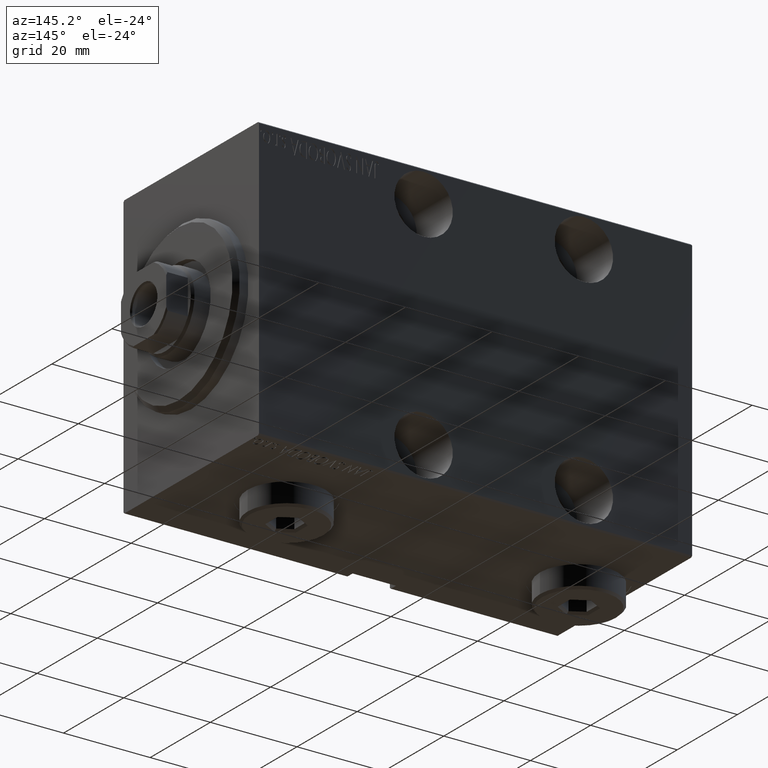
[diagram: clean part render]
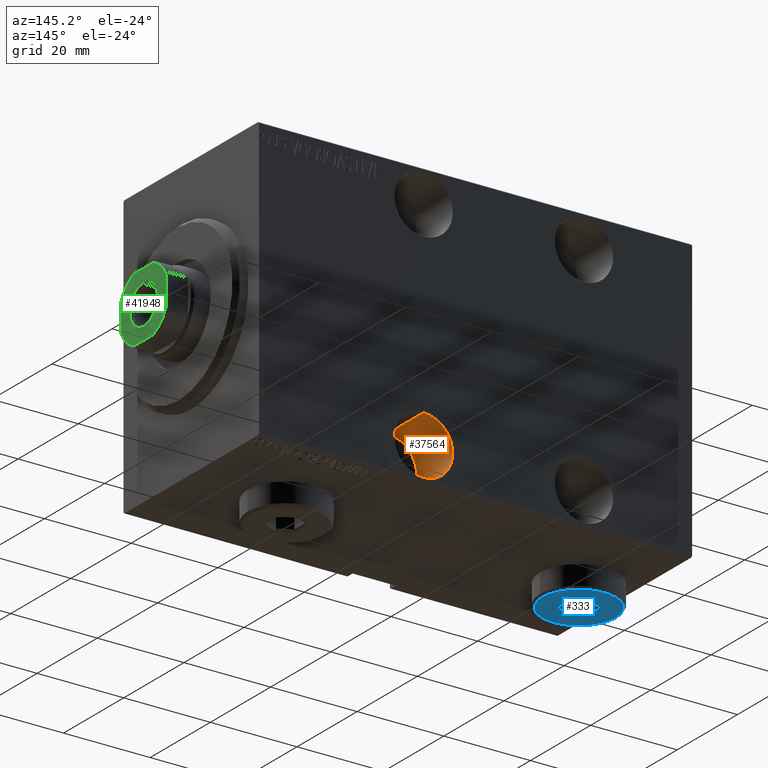
[diagram: same view with three faces highlighted in distinct colors, each labeled with its STEP entity id]
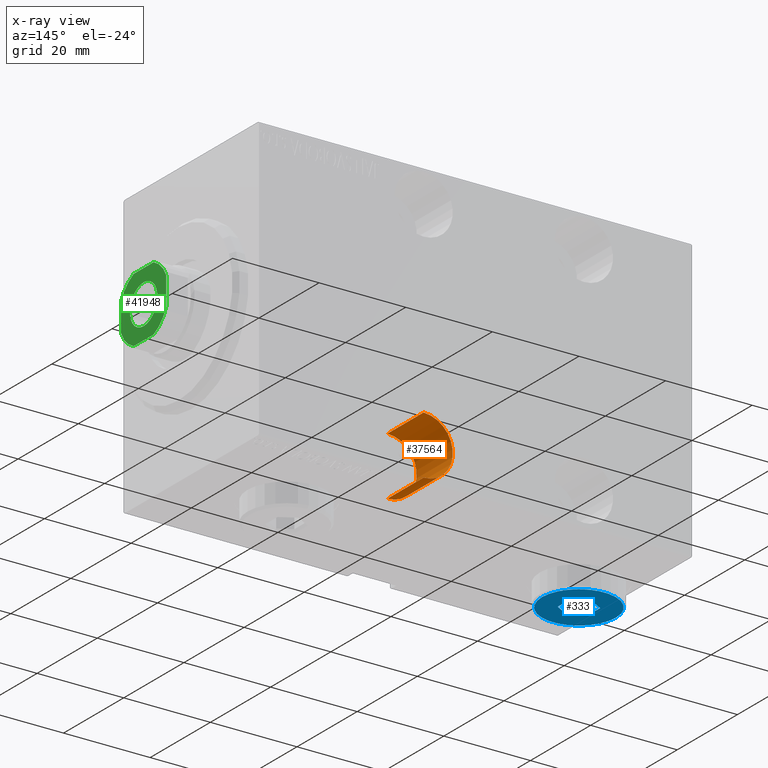
[diagram: x-ray of the same camera — body ghosted, the three highlighted faces saturated]
A machine part, auxiliary view with three faces highlighted in distinct colors.
The next image is the same camera in x-ray (body ghosted, the three faces saturated) — at least one of them is partly hidden behind the body in this view.
Their STEP definitions:

[orange] entity #37564 — the highlighted cylindrical surface (edge-blend (fillet) strip) has radius 6.75 mm, axis along (0, 1, -0).
#494 = ORIENTED_EDGE ( 'NONE', *, *, #17439, .T. ) ;
#1271 = EDGE_CURVE ( 'NONE', #2046, #23467, #23953, .T. ) ;
#1917 = CARTESIAN_POINT ( 'NONE',  ( 38.00000000000000711, -22.49999999999999645, -31.75000000000000000 ) ) ;
#2046 = VERTEX_POINT ( 'NONE', #1917 ) ;
#2572 = CARTESIAN_POINT ( 'NONE',  ( 38.00000000000000711, -10.49999999999999467, -18.25000000000000000 ) ) ;
#4057 = DIRECTION ( 'NONE',  ( -0.000000000000000000, -1.000000000000000000, -0.000000000000000000 ) ) ;
#4499 = CARTESIAN_POINT ( 'NONE',  ( 38.00000000000000711, -10.49999999999999467, -31.75000000000000000 ) ) ;
#7479 = AXIS2_PLACEMENT_3D ( 'NONE', #44005, #37258, #20615 ) ;
#8158 = FACE_OUTER_BOUND ( 'NONE', #32557, .T. ) ;
#8621 = EDGE_CURVE ( 'NONE', #25383, #23467, #26602, .T. ) ;
#10634 = CYLINDRICAL_SURFACE ( 'NONE', #33264, 6.750000000000002665 ) ;
#13976 = EDGE_CURVE ( 'NONE', #17099, #25383, #22192, .T. ) ;
#14667 = CARTESIAN_POINT ( 'NONE',  ( 38.00000000000000711, -10.49999999999999467, -24.99999999999999645 ) ) ;
#17096 = VECTOR ( 'NONE', #4057, 1000.000000000000000 ) ;
#17099 = VERTEX_POINT ( 'NONE', #30392 ) ;
#17439 = EDGE_CURVE ( 'NONE', #17099, #2046, #18409, .T. ) ;
#18409 = LINE ( 'NONE', #4499, #17096 ) ;
#20615 = DIRECTION ( 'NONE',  ( 0.000000000000000000, 0.000000000000000000, -1.000000000000000000 ) ) ;
#22037 = VECTOR ( 'NONE', #25730, 1000.000000000000000 ) ;
#22192 = CIRCLE ( 'NONE', #31504, 6.750000000000002665 ) ;
#23467 = VERTEX_POINT ( 'NONE', #37463 ) ;
#23953 = CIRCLE ( 'NONE', #7479, 6.750000000000002665 ) ;
#24339 = DIRECTION ( 'NONE',  ( 0.000000000000000000, 0.000000000000000000, -1.000000000000000000 ) ) ;
#25383 = VERTEX_POINT ( 'NONE', #38865 ) ;
#25515 = DIRECTION ( 'NONE',  ( 0.000000000000000000, -1.000000000000000000, 0.000000000000000000 ) ) ;
#25730 = DIRECTION ( 'NONE',  ( -0.000000000000000000, -1.000000000000000000, -0.000000000000000000 ) ) ;
#26361 = ORIENTED_EDGE ( 'NONE', *, *, #8621, .F. ) ;
#26602 = LINE ( 'NONE', #2572, #22037 ) ;
#29993 = ORIENTED_EDGE ( 'NONE', *, *, #1271, .T. ) ;
#30392 = CARTESIAN_POINT ( 'NONE',  ( 38.00000000000000711, -10.49999999999999467, -31.75000000000000000 ) ) ;
#31504 = AXIS2_PLACEMENT_3D ( 'NONE', #32262, #25515, #39222 ) ;
#32262 = CARTESIAN_POINT ( 'NONE',  ( 38.00000000000000711, -10.49999999999999467, -24.99999999999999645 ) ) ;
#32557 = EDGE_LOOP ( 'NONE', ( #26361, #37799, #494, #29993 ) ) ;
#33264 = AXIS2_PLACEMENT_3D ( 'NONE', #14667, #34907, #24339 ) ;
#34907 = DIRECTION ( 'NONE',  ( -0.000000000000000000, -1.000000000000000000, -0.000000000000000000 ) ) ;
#37258 = DIRECTION ( 'NONE',  ( 0.000000000000000000, -1.000000000000000000, 0.000000000000000000 ) ) ;
#37463 = CARTESIAN_POINT ( 'NONE',  ( 38.00000000000000711, -22.49999999999999645, -18.24999999999999645 ) ) ;
#37564 = ADVANCED_FACE ( 'NONE', ( #8158 ), #10634, .F. ) ;
#37799 = ORIENTED_EDGE ( 'NONE', *, *, #13976, .F. ) ;
#38865 = CARTESIAN_POINT ( 'NONE',  ( 38.00000000000000711, -10.49999999999999467, -18.24999999999999645 ) ) ;
#39222 = DIRECTION ( 'NONE',  ( 0.000000000000000000, 0.000000000000000000, -1.000000000000000000 ) ) ;
#44005 = CARTESIAN_POINT ( 'NONE',  ( 38.00000000000000711, -22.49999999999999645, -24.99999999999999645 ) ) ;

[blue] entity #333 — the highlighted planar face has unit normal (-0, 0, -1).
#320 = ORIENTED_EDGE ( 'NONE', *, *, #13819, .T. ) ;
#333 = ADVANCED_FACE ( 'NONE', ( #40903, #30783 ), #41125, .T. ) ;
#900 = DIRECTION ( 'NONE',  ( -0.8660254037844387076, -0.4999999999999998890, 0.000000000000000000 ) ) ;
#1118 = CIRCLE ( 'NONE', #26233, 8.500000000000010658 ) ;
#1125 = AXIS2_PLACEMENT_3D ( 'NONE', #38830, #21753, #1311 ) ;
#1311 = DIRECTION ( 'NONE',  ( 1.000000000000000000, 0.000000000000000000, 0.000000000000000000 ) ) ;
#1593 = DIRECTION ( 'NONE',  ( 0.000000000000000000, 1.000000000000000000, 0.000000000000000000 ) ) ;
#3164 = DIRECTION ( 'NONE',  ( 0.000000000000000000, 0.000000000000000000, 1.000000000000000000 ) ) ;
#3533 = CARTESIAN_POINT ( 'NONE',  ( -1.006139216460143630E-15, -4.041451884327387667, 5.000000000000000000 ) ) ;
#3609 = DIRECTION ( 'NONE',  ( 1.000000000000000000, 0.000000000000000000, -0.000000000000000000 ) ) ;
#4963 = CARTESIAN_POINT ( 'NONE',  ( 0.000000000000000000, 0.000000000000000000, 5.000000000000000000 ) ) ;
#5098 = EDGE_CURVE ( 'NONE', #9461, #44187, #15466, .T. ) ;
#5415 = LINE ( 'NONE', #11691, #32445 ) ;
#6675 = VERTEX_POINT ( 'NONE', #25705 ) ;
#7080 = EDGE_CURVE ( 'NONE', #31456, #27929, #17982, .T. ) ;
#7638 = ORIENTED_EDGE ( 'NONE', *, *, #41480, .T. ) ;
#7868 = CARTESIAN_POINT ( 'NONE',  ( -3.500000000000006661, 2.020725942163692945, 5.000000000000000000 ) ) ;
#7884 = DIRECTION ( 'NONE',  ( 1.000000000000000000, 0.000000000000000000, 0.000000000000000000 ) ) ;
#9461 = VERTEX_POINT ( 'NONE', #13449 ) ;
#10822 = ORIENTED_EDGE ( 'NONE', *, *, #42860, .T. ) ;
#11451 = VECTOR ( 'NONE', #26035, 1000.000000000000000 ) ;
#11691 = CARTESIAN_POINT ( 'NONE',  ( -3.500000000000006661, 1.732050807568878081, 5.000000000000000000 ) ) ;
#12623 = VERTEX_POINT ( 'NONE', #34643 ) ;
#13449 = CARTESIAN_POINT ( 'NONE',  ( -8.500000000000010658, 0.000000000000000000, 5.000000000000000000 ) ) ;
#13819 = EDGE_CURVE ( 'NONE', #20999, #6675, #14058, .T. ) ;
#14058 = LINE ( 'NONE', #31143, #37237 ) ;
#14728 = DIRECTION ( 'NONE',  ( 0.8660254037844387076, 0.4999999999999998335, 0.000000000000000000 ) ) ;
#14815 = CARTESIAN_POINT ( 'NONE',  ( 0.2500000000000027756, -3.897114317029979347, 5.000000000000000000 ) ) ;
#15466 = CIRCLE ( 'NONE', #1125, 8.500000000000010658 ) ;
#16228 = VECTOR ( 'NONE', #900, 1000.000000000000000 ) ;
#16849 = LINE ( 'NONE', #20001, #20513 ) ;
#17208 = ORIENTED_EDGE ( 'NONE', *, *, #7080, .T. ) ;
#17982 = LINE ( 'NONE', #14815, #16228 ) ;
#18051 = DIRECTION ( 'NONE',  ( 0.000000000000000000, -1.000000000000000000, 0.000000000000000000 ) ) ;
#18224 = AXIS2_PLACEMENT_3D ( 'NONE', #37308, #3164, #3609 ) ;
#20001 = CARTESIAN_POINT ( 'NONE',  ( -3.250000000000003109, -2.165063509461102598, 5.000000000000000000 ) ) ;
#20040 = EDGE_LOOP ( 'NONE', ( #26907, #7638 ) ) ;
#20513 = VECTOR ( 'NONE', #23373, 1000.000000000000114 ) ;
#20999 = VERTEX_POINT ( 'NONE', #7868 ) ;
#21190 = EDGE_CURVE ( 'NONE', #6675, #24073, #39531, .T. ) ;
#21195 = LINE ( 'NONE', #28166, #25219 ) ;
#21753 = DIRECTION ( 'NONE',  ( 0.000000000000000000, 0.000000000000000000, 1.000000000000000000 ) ) ;
#22441 = CARTESIAN_POINT ( 'NONE',  ( 3.250000000000003109, 2.165063509461103042, 5.000000000000000000 ) ) ;
#23373 = DIRECTION ( 'NONE',  ( -0.8660254037844385966, 0.4999999999999999445, 0.000000000000000000 ) ) ;
#24073 = VERTEX_POINT ( 'NONE', #35107 ) ;
#25219 = VECTOR ( 'NONE', #18051, 1000.000000000000000 ) ;
#25705 = CARTESIAN_POINT ( 'NONE',  ( 1.590596867181068292E-15, 4.041451884327386779, 5.000000000000000000 ) ) ;
#26035 = DIRECTION ( 'NONE',  ( 0.8660254037844387076, -0.4999999999999998890, 0.000000000000000000 ) ) ;
#26233 = AXIS2_PLACEMENT_3D ( 'NONE', #4963, #38880, #7884 ) ;
#26414 = EDGE_CURVE ( 'NONE', #24073, #31456, #21195, .T. ) ;
#26583 = ORIENTED_EDGE ( 'NONE', *, *, #21190, .T. ) ;
#26907 = ORIENTED_EDGE ( 'NONE', *, *, #5098, .T. ) ;
#27423 = EDGE_CURVE ( 'NONE', #12623, #20999, #5415, .T. ) ;
#27929 = VERTEX_POINT ( 'NONE', #3533 ) ;
#28166 = CARTESIAN_POINT ( 'NONE',  ( 3.500000000000006661, -1.732050807568878303, 5.000000000000000000 ) ) ;
#30783 = FACE_OUTER_BOUND ( 'NONE', #20040, .T. ) ;
#31143 = CARTESIAN_POINT ( 'NONE',  ( -0.2500000000000027756, 3.897114317029978459, 5.000000000000000000 ) ) ;
#31456 = VERTEX_POINT ( 'NONE', #41913 ) ;
#31891 = EDGE_LOOP ( 'NONE', ( #36763, #320, #26583, #31925, #17208, #10822 ) ) ;
#31925 = ORIENTED_EDGE ( 'NONE', *, *, #26414, .T. ) ;
#32445 = VECTOR ( 'NONE', #1593, 1000.000000000000000 ) ;
#34643 = CARTESIAN_POINT ( 'NONE',  ( -3.500000000000006661, -2.020725942163694278, 5.000000000000000000 ) ) ;
#35107 = CARTESIAN_POINT ( 'NONE',  ( 3.500000000000006661, 2.020725942163694722, 5.000000000000000000 ) ) ;
#36092 = CARTESIAN_POINT ( 'NONE',  ( 8.500000000000010658, 1.071565949253934716E-15, 5.000000000000000000 ) ) ;
#36763 = ORIENTED_EDGE ( 'NONE', *, *, #27423, .T. ) ;
#37237 = VECTOR ( 'NONE', #14728, 1000.000000000000000 ) ;
#37308 = CARTESIAN_POINT ( 'NONE',  ( 0.000000000000000000, 0.000000000000000000, 5.000000000000000000 ) ) ;
#38830 = CARTESIAN_POINT ( 'NONE',  ( 0.000000000000000000, 0.000000000000000000, 5.000000000000000000 ) ) ;
#38880 = DIRECTION ( 'NONE',  ( 0.000000000000000000, 0.000000000000000000, 1.000000000000000000 ) ) ;
#39531 = LINE ( 'NONE', #22441, #11451 ) ;
#40903 = FACE_BOUND ( 'NONE', #31891, .T. ) ;
#41125 = PLANE ( 'NONE',  #18224 ) ;
#41480 = EDGE_CURVE ( 'NONE', #44187, #9461, #1118, .T. ) ;
#41913 = CARTESIAN_POINT ( 'NONE',  ( 3.500000000000006661, -2.020725942163693833, 5.000000000000000000 ) ) ;
#42860 = EDGE_CURVE ( 'NONE', #27929, #12623, #16849, .T. ) ;
#44187 = VERTEX_POINT ( 'NONE', #36092 ) ;

[green] entity #41948 — the highlighted planar face has unit normal (1, 0, -0).
#587 = AXIS2_PLACEMENT_3D ( 'NONE', #9229, #39356, #8573 ) ;
#1431 = ORIENTED_EDGE ( 'NONE', *, *, #37709, .T. ) ;
#1462 = CARTESIAN_POINT ( 'NONE',  ( 0.000000000000000000, 0.000000000000000000, 105.0000000000000142 ) ) ;
#1770 = VERTEX_POINT ( 'NONE', #17546 ) ;
#2092 = ORIENTED_EDGE ( 'NONE', *, *, #42158, .T. ) ;
#2322 = CARTESIAN_POINT ( 'NONE',  ( 0.000000000000000000, 0.000000000000000000, 105.0000000000000142 ) ) ;
#2662 = ORIENTED_EDGE ( 'NONE', *, *, #17494, .T. ) ;
#2860 = FACE_BOUND ( 'NONE', #32064, .T. ) ;
#3290 = EDGE_CURVE ( 'NONE', #29257, #38885, #15425, .T. ) ;
#3716 = CARTESIAN_POINT ( 'NONE',  ( -7.499999999999999112, -3.315116890850218212, 105.0000000000000142 ) ) ;
#4136 = CARTESIAN_POINT ( 'NONE',  ( 3.315116890850199116, 7.500000000000000888, 105.0000000000000142 ) ) ;
#4891 = CIRCLE ( 'NONE', #6294, 4.549999999999984723 ) ;
#5518 = DIRECTION ( 'NONE',  ( 1.000000000000000000, 0.000000000000000000, 0.000000000000000000 ) ) ;
#5534 = AXIS2_PLACEMENT_3D ( 'NONE', #1462, #21912, #11133 ) ;
#6294 = AXIS2_PLACEMENT_3D ( 'NONE', #39334, #28777, #42491 ) ;
#8369 = EDGE_CURVE ( 'NONE', #14981, #42926, #41411, .T. ) ;
#8573 = DIRECTION ( 'NONE',  ( 1.000000000000000000, 0.000000000000000000, 0.000000000000000000 ) ) ;
#8623 = DIRECTION ( 'NONE',  ( -0.000000000000000000, 0.000000000000000000, 1.000000000000000000 ) ) ;
#9229 = CARTESIAN_POINT ( 'NONE',  ( 0.000000000000000000, 0.000000000000000000, 105.0000000000000142 ) ) ;
#10250 = CARTESIAN_POINT ( 'NONE',  ( 0.000000000000000000, 0.000000000000000000, 105.0000000000000142 ) ) ;
#10615 = AXIS2_PLACEMENT_3D ( 'NONE', #2322, #8623, #22100 ) ;
#10657 = ORIENTED_EDGE ( 'NONE', *, *, #3290, .T. ) ;
#11044 = DIRECTION ( 'NONE',  ( 0.000000000000000000, -0.000000000000000000, -1.000000000000000000 ) ) ;
#11085 = EDGE_CURVE ( 'NONE', #38885, #29257, #4891, .T. ) ;
#11133 = DIRECTION ( 'NONE',  ( 1.000000000000000000, 0.000000000000000000, 0.000000000000000000 ) ) ;
#11529 = CARTESIAN_POINT ( 'NONE',  ( -3.315116890850142717, 7.500000000000000888, 105.0000000000000142 ) ) ;
#12138 = CIRCLE ( 'NONE', #10615, 8.200000000000024158 ) ;
#13478 = LINE ( 'NONE', #19339, #18702 ) ;
#14288 = DIRECTION ( 'NONE',  ( 1.000000000000000000, 0.000000000000000000, 0.000000000000000000 ) ) ;
#14590 = DIRECTION ( 'NONE',  ( -1.000000000000000000, 5.782411586589357392E-17, -0.000000000000000000 ) ) ;
#14981 = VERTEX_POINT ( 'NONE', #11529 ) ;
#15425 = CIRCLE ( 'NONE', #16138, 4.549999999999984723 ) ;
#15658 = CIRCLE ( 'NONE', #587, 8.200000000000017053 ) ;
#16088 = EDGE_CURVE ( 'NONE', #43084, #1770, #12138, .T. ) ;
#16138 = AXIS2_PLACEMENT_3D ( 'NONE', #34868, #11044, #24976 ) ;
#16681 = VERTEX_POINT ( 'NONE', #30004 ) ;
#17180 = ORIENTED_EDGE ( 'NONE', *, *, #18647, .T. ) ;
#17279 = EDGE_CURVE ( 'NONE', #16681, #35865, #15658, .T. ) ;
#17494 = EDGE_CURVE ( 'NONE', #35803, #14981, #24262, .T. ) ;
#17546 = CARTESIAN_POINT ( 'NONE',  ( -3.315116890850222653, -7.499999999999998224, 105.0000000000000142 ) ) ;
#18647 = EDGE_CURVE ( 'NONE', #35865, #36926, #24679, .T. ) ;
#18702 = VECTOR ( 'NONE', #30562, 1000.000000000000000 ) ;
#19339 = CARTESIAN_POINT ( 'NONE',  ( -7.500000000000001776, 7.500000000000001776, 105.0000000000000142 ) ) ;
#19950 = VECTOR ( 'NONE', #14590, 1000.000000000000000 ) ;
#20377 = CARTESIAN_POINT ( 'NONE',  ( -4.549999999999984723, 5.572142936120437605E-16, 105.0000000000000142 ) ) ;
#20723 = VECTOR ( 'NONE', #35018, 1000.000000000000000 ) ;
#21117 = CARTESIAN_POINT ( 'NONE',  ( -7.500000000000000888, 3.315116890850143605, 105.0000000000000142 ) ) ;
#21341 = CARTESIAN_POINT ( 'NONE',  ( -7.500000000000001776, 7.500000000000001776, 105.0000000000000142 ) ) ;
#21912 = DIRECTION ( 'NONE',  ( -0.000000000000000000, 0.000000000000000000, 1.000000000000000000 ) ) ;
#22100 = DIRECTION ( 'NONE',  ( 1.000000000000000000, 0.000000000000000000, 0.000000000000000000 ) ) ;
#24262 = LINE ( 'NONE', #21341, #19950 ) ;
#24271 = EDGE_CURVE ( 'NONE', #42926, #43084, #13478, .T. ) ;
#24679 = LINE ( 'NONE', #41088, #20723 ) ;
#24976 = DIRECTION ( 'NONE',  ( 1.000000000000000000, 0.000000000000000000, 0.000000000000000000 ) ) ;
#25670 = CARTESIAN_POINT ( 'NONE',  ( 7.499999999999998224, 3.315116890850205777, 105.0000000000000142 ) ) ;
#26324 = ORIENTED_EDGE ( 'NONE', *, *, #17279, .T. ) ;
#26392 = DIRECTION ( 'NONE',  ( -0.000000000000000000, 0.000000000000000000, 1.000000000000000000 ) ) ;
#28384 = AXIS2_PLACEMENT_3D ( 'NONE', #10250, #41714, #14288 ) ;
#28777 = DIRECTION ( 'NONE',  ( 0.000000000000000000, -0.000000000000000000, -1.000000000000000000 ) ) ;
#29047 = LINE ( 'NONE', #42762, #31822 ) ;
#29257 = VERTEX_POINT ( 'NONE', #20377 ) ;
#29851 = CIRCLE ( 'NONE', #33426, 8.200000000000018829 ) ;
#30004 = CARTESIAN_POINT ( 'NONE',  ( 3.315116890850202225, -7.499999999999996447, 105.0000000000000142 ) ) ;
#30254 = FACE_OUTER_BOUND ( 'NONE', #37567, .T. ) ;
#30562 = DIRECTION ( 'NONE',  ( 1.734723475976807094E-16, -1.000000000000000000, 0.000000000000000000 ) ) ;
#30762 = ORIENTED_EDGE ( 'NONE', *, *, #11085, .T. ) ;
#31589 = ORIENTED_EDGE ( 'NONE', *, *, #24271, .T. ) ;
#31756 = CARTESIAN_POINT ( 'NONE',  ( 7.499999999999998224, -3.315116890850200004, 105.0000000000000142 ) ) ;
#31822 = VECTOR ( 'NONE', #39603, 1000.000000000000000 ) ;
#32064 = EDGE_LOOP ( 'NONE', ( #30762, #10657 ) ) ;
#33426 = AXIS2_PLACEMENT_3D ( 'NONE', #39880, #26392, #5518 ) ;
#34868 = CARTESIAN_POINT ( 'NONE',  ( 0.000000000000000000, 0.000000000000000000, 105.0000000000000142 ) ) ;
#35018 = DIRECTION ( 'NONE',  ( -1.156482317317871478E-16, 1.000000000000000000, -0.000000000000000000 ) ) ;
#35464 = ORIENTED_EDGE ( 'NONE', *, *, #8369, .T. ) ;
#35803 = VERTEX_POINT ( 'NONE', #4136 ) ;
#35865 = VERTEX_POINT ( 'NONE', #31756 ) ;
#36926 = VERTEX_POINT ( 'NONE', #25670 ) ;
#37567 = EDGE_LOOP ( 'NONE', ( #17180, #2092, #2662, #35464, #31589, #39574, #1431, #26324 ) ) ;
#37709 = EDGE_CURVE ( 'NONE', #1770, #16681, #29047, .T. ) ;
#38885 = VERTEX_POINT ( 'NONE', #42713 ) ;
#39334 = CARTESIAN_POINT ( 'NONE',  ( 0.000000000000000000, 0.000000000000000000, 105.0000000000000142 ) ) ;
#39356 = DIRECTION ( 'NONE',  ( -0.000000000000000000, 0.000000000000000000, 1.000000000000000000 ) ) ;
#39574 = ORIENTED_EDGE ( 'NONE', *, *, #16088, .T. ) ;
#39603 = DIRECTION ( 'NONE',  ( 1.000000000000000000, 0.000000000000000000, 0.000000000000000000 ) ) ;
#39880 = CARTESIAN_POINT ( 'NONE',  ( 0.000000000000000000, 0.000000000000000000, 105.0000000000000142 ) ) ;
#41035 = PLANE ( 'NONE',  #28384 ) ;
#41088 = CARTESIAN_POINT ( 'NONE',  ( 7.499999999999997335, 7.500000000000000888, 105.0000000000000142 ) ) ;
#41411 = CIRCLE ( 'NONE', #5534, 8.199999999999995737 ) ;
#41714 = DIRECTION ( 'NONE',  ( -0.000000000000000000, 0.000000000000000000, 1.000000000000000000 ) ) ;
#41948 = ADVANCED_FACE ( 'NONE', ( #2860, #30254 ), #41035, .T. ) ;
#42158 = EDGE_CURVE ( 'NONE', #36926, #35803, #29851, .T. ) ;
#42491 = DIRECTION ( 'NONE',  ( 1.000000000000000000, 0.000000000000000000, 0.000000000000000000 ) ) ;
#42713 = CARTESIAN_POINT ( 'NONE',  ( 4.549999999999984723, 0.000000000000000000, 105.0000000000000142 ) ) ;
#42762 = CARTESIAN_POINT ( 'NONE',  ( -7.499999999999999112, -7.499999999999998224, 105.0000000000000142 ) ) ;
#42926 = VERTEX_POINT ( 'NONE', #21117 ) ;
#43084 = VERTEX_POINT ( 'NONE', #3716 ) ;